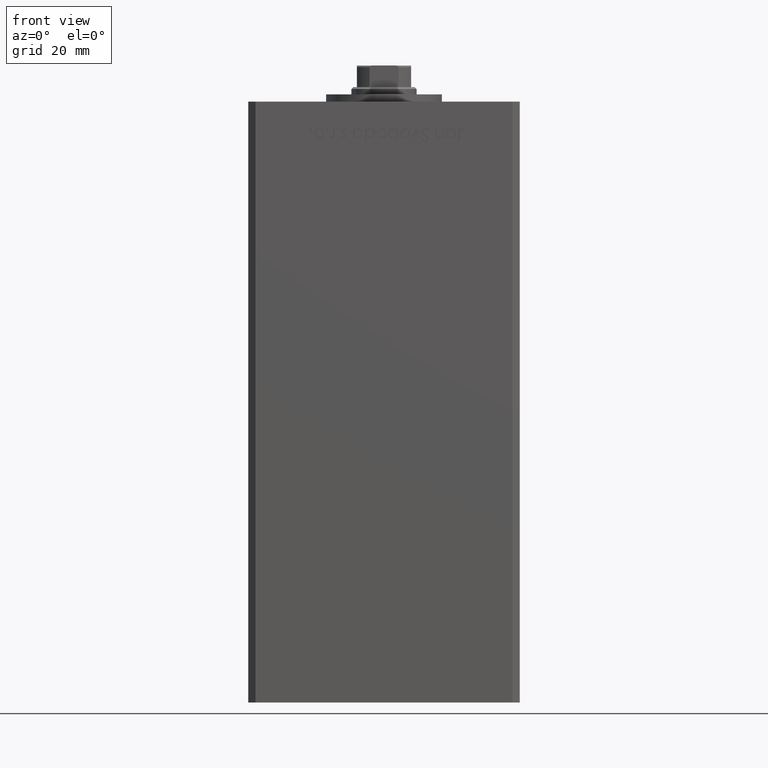
[diagram: clean part render]
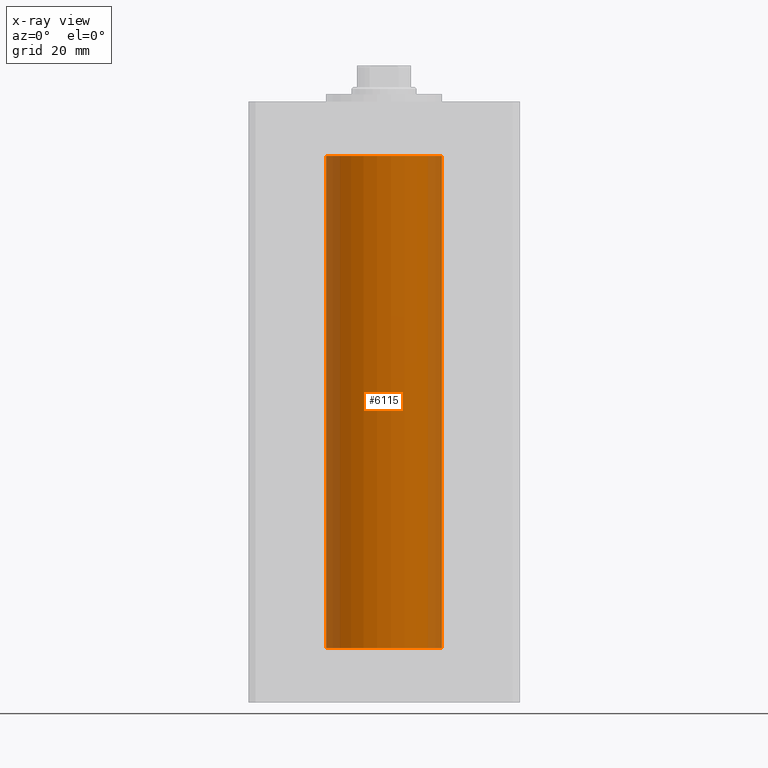
[diagram: x-ray — body ghosted, one internal face saturated and labeled with its STEP entity id]
A machine part, front view, then the same camera in x-ray: the body is ghosted and one INTERNAL B-rep face — a face not visible from any outside direction — is saturated and labeled: STEP entity #6115.
In plain terms, the highlighted cylindrical surface (partial cylindrical patch) has radius 16 mm, axis along (-0, -0, -1).
Its self-contained STEP definition (entity closure, byte-faithful):
#1590 = DIRECTION ( 'NONE',  ( 1.000000000000000000, 0.000000000000000000, 0.000000000000000000 ) ) ;
#2411 = DIRECTION ( 'NONE',  ( -0.000000000000000000, -0.000000000000000000, -1.000000000000000000 ) ) ;
#3694 = EDGE_CURVE ( 'NONE', #33686, #28424, #13075, .T. ) ;
#4053 = CARTESIAN_POINT ( 'NONE',  ( -16.00000000000000000, 0.000000000000000000, 136.0000000000000000 ) ) ;
#6115 = ADVANCED_FACE ( 'NONE', ( #27041 ), #26263, .F. ) ;
#9438 = CARTESIAN_POINT ( 'NONE',  ( 0.000000000000000000, 0.000000000000000000, 0.000000000000000000 ) ) ;
#10526 = CARTESIAN_POINT ( 'NONE',  ( 0.000000000000000000, 0.000000000000000000, 136.0000000000000000 ) ) ;
#12591 = DIRECTION ( 'NONE',  ( -0.000000000000000000, -0.000000000000000000, -1.000000000000000000 ) ) ;
#13075 = CIRCLE ( 'NONE', #45736, 16.00000000000000000 ) ;
#13923 = VERTEX_POINT ( 'NONE', #45407 ) ;
#13932 = ORIENTED_EDGE ( 'NONE', *, *, #40376, .F. ) ;
#17168 = EDGE_CURVE ( 'NONE', #28424, #31512, #37925, .T. ) ;
#20980 = CARTESIAN_POINT ( 'NONE',  ( -16.00000000000000000, 0.000000000000000000, 136.0000000000000000 ) ) ;
#22191 = VECTOR ( 'NONE', #47560, 1000.000000000000000 ) ;
#23791 = AXIS2_PLACEMENT_3D ( 'NONE', #9438, #36697, #1590 ) ;
#24799 = CARTESIAN_POINT ( 'NONE',  ( 0.000000000000000000, 0.000000000000000000, 136.0000000000000000 ) ) ;
#26263 = CYLINDRICAL_SURFACE ( 'NONE', #51630, 16.00000000000000000 ) ;
#27041 = FACE_OUTER_BOUND ( 'NONE', #30038, .T. ) ;
#28424 = VERTEX_POINT ( 'NONE', #29367 ) ;
#29367 = CARTESIAN_POINT ( 'NONE',  ( 16.00000000000000000, 1.959434878635765131E-15, 136.0000000000000000 ) ) ;
#30038 = EDGE_LOOP ( 'NONE', ( #35930, #35242, #13932, #39255 ) ) ;
#30109 = CARTESIAN_POINT ( 'NONE',  ( 16.00000000000000000, 1.959434878635765131E-15, 0.000000000000000000 ) ) ;
#31512 = VERTEX_POINT ( 'NONE', #30109 ) ;
#32659 = DIRECTION ( 'NONE',  ( -0.000000000000000000, 0.000000000000000000, 1.000000000000000000 ) ) ;
#33686 = VERTEX_POINT ( 'NONE', #20980 ) ;
#35242 = ORIENTED_EDGE ( 'NONE', *, *, #17168, .T. ) ;
#35930 = ORIENTED_EDGE ( 'NONE', *, *, #3694, .T. ) ;
#36064 = DIRECTION ( 'NONE',  ( 1.000000000000000000, 0.000000000000000000, 0.000000000000000000 ) ) ;
#36697 = DIRECTION ( 'NONE',  ( -0.000000000000000000, 0.000000000000000000, 1.000000000000000000 ) ) ;
#37925 = LINE ( 'NONE', #40633, #38442 ) ;
#38442 = VECTOR ( 'NONE', #12591, 1000.000000000000000 ) ;
#39255 = ORIENTED_EDGE ( 'NONE', *, *, #43435, .F. ) ;
#40376 = EDGE_CURVE ( 'NONE', #13923, #31512, #43864, .T. ) ;
#40633 = CARTESIAN_POINT ( 'NONE',  ( 16.00000000000000000, 1.959434878635765131E-15, 136.0000000000000000 ) ) ;
#43435 = EDGE_CURVE ( 'NONE', #33686, #13923, #43868, .T. ) ;
#43864 = CIRCLE ( 'NONE', #23791, 16.00000000000000000 ) ;
#43868 = LINE ( 'NONE', #4053, #22191 ) ;
#45407 = CARTESIAN_POINT ( 'NONE',  ( -16.00000000000000000, 0.000000000000000000, 0.000000000000000000 ) ) ;
#45736 = AXIS2_PLACEMENT_3D ( 'NONE', #24799, #32659, #36064 ) ;
#46431 = DIRECTION ( 'NONE',  ( -1.000000000000000000, 0.000000000000000000, 0.000000000000000000 ) ) ;
#47560 = DIRECTION ( 'NONE',  ( -0.000000000000000000, -0.000000000000000000, -1.000000000000000000 ) ) ;
#51630 = AXIS2_PLACEMENT_3D ( 'NONE', #10526, #2411, #46431 ) ;